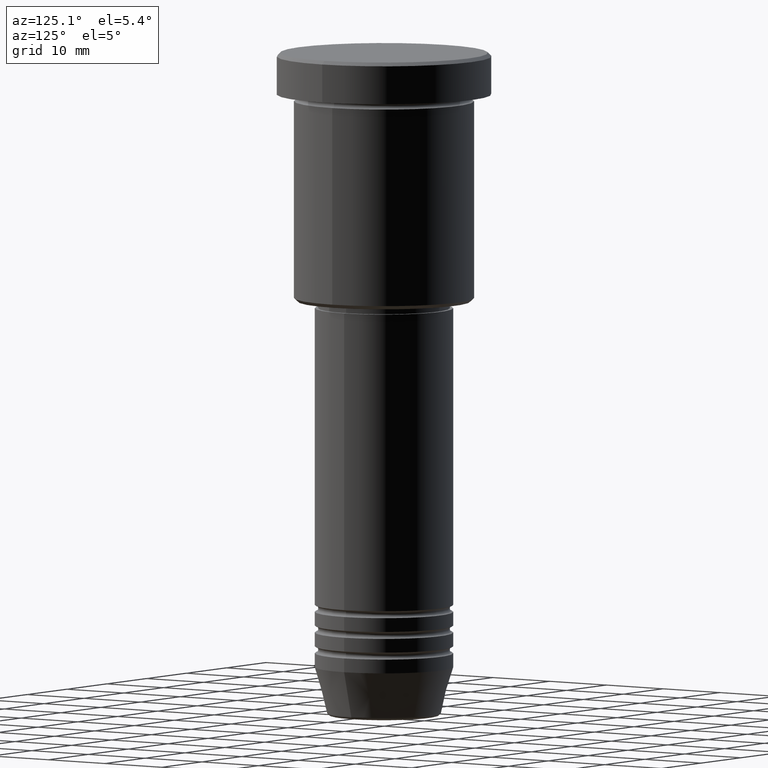
[diagram: clean part render]
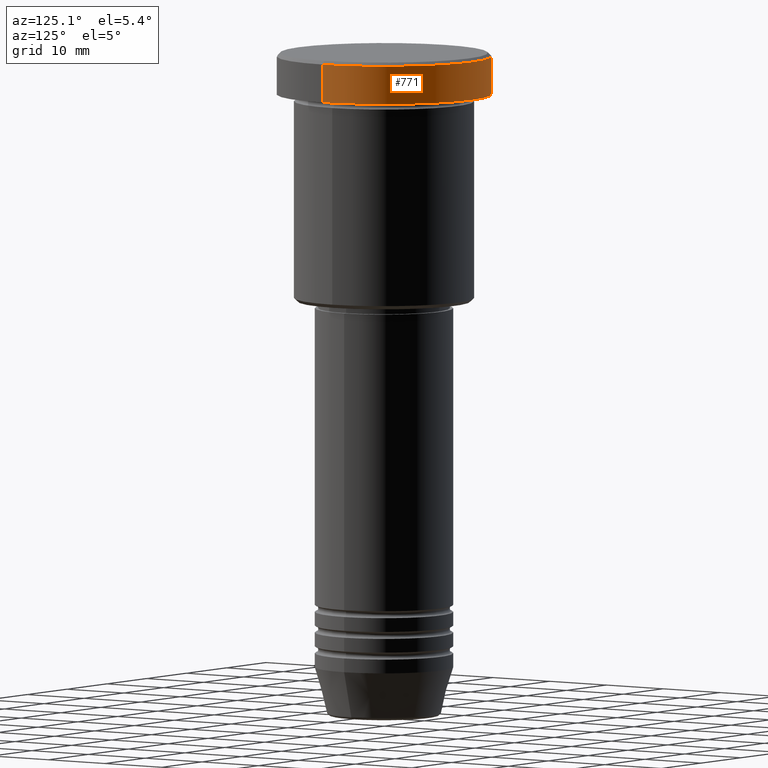
[diagram: same view with one face highlighted and labeled with its STEP entity id]
A machine part, auxiliary view. The second image highlights one B-rep face of the part: STEP entity #771.
In plain terms, the highlighted cylindrical surface (partial cylindrical patch) has radius 15.5 mm, axis along (-0, -0, 1).
Its self-contained STEP definition (entity closure, byte-faithful):
#31 = VERTEX_POINT ( 'NONE', #999 ) ;
#35 = DIRECTION ( 'NONE',  ( 0.000000000000000000, 0.000000000000000000, -1.000000000000000000 ) ) ;
#39 = CIRCLE ( 'NONE', #254, 15.50000000000000000 ) ;
#53 = AXIS2_PLACEMENT_3D ( 'NONE', #1147, #1165, #868 ) ;
#160 = CARTESIAN_POINT ( 'NONE',  ( -15.50000000000000000, 1.898202538678397557E-15, -0.4999999999999987232 ) ) ;
#197 = ORIENTED_EDGE ( 'NONE', *, *, #744, .T. ) ;
#241 = CYLINDRICAL_SURFACE ( 'NONE', #53, 15.50000000000000000 ) ;
#245 = VECTOR ( 'NONE', #730, 1000.000000000000000 ) ;
#254 = AXIS2_PLACEMENT_3D ( 'NONE', #1171, #898, #547 ) ;
#257 = VERTEX_POINT ( 'NONE', #874 ) ;
#262 = EDGE_LOOP ( 'NONE', ( #562, #445, #197, #938 ) ) ;
#273 = CARTESIAN_POINT ( 'NONE',  ( -15.50000000000000000, 1.898202538678397557E-15, 0.000000000000000000 ) ) ;
#277 = EDGE_CURVE ( 'NONE', #31, #257, #627, .T. ) ;
#355 = EDGE_CURVE ( 'NONE', #31, #841, #39, .T. ) ;
#364 = VECTOR ( 'NONE', #887, 1000.000000000000000 ) ;
#398 = DIRECTION ( 'NONE',  ( 1.000000000000000000, 0.000000000000000000, 0.000000000000000000 ) ) ;
#429 = CARTESIAN_POINT ( 'NONE',  ( -15.50000000000000000, 1.898202538678397557E-15, -5.999999999999995559 ) ) ;
#445 = ORIENTED_EDGE ( 'NONE', *, *, #895, .T. ) ;
#468 = VERTEX_POINT ( 'NONE', #160 ) ;
#498 = CARTESIAN_POINT ( 'NONE',  ( 0.000000000000000000, 0.000000000000000000, -0.4999999999999987232 ) ) ;
#547 = DIRECTION ( 'NONE',  ( 1.000000000000000000, 0.000000000000000000, 0.000000000000000000 ) ) ;
#562 = ORIENTED_EDGE ( 'NONE', *, *, #355, .T. ) ;
#627 = LINE ( 'NONE', #977, #364 ) ;
#730 = DIRECTION ( 'NONE',  ( -0.000000000000000000, -0.000000000000000000, 1.000000000000000000 ) ) ;
#744 = EDGE_CURVE ( 'NONE', #468, #257, #872, .T. ) ;
#771 = ADVANCED_FACE ( 'NONE', ( #1074 ), #241, .T. ) ;
#778 = AXIS2_PLACEMENT_3D ( 'NONE', #498, #35, #398 ) ;
#841 = VERTEX_POINT ( 'NONE', #429 ) ;
#868 = DIRECTION ( 'NONE',  ( 1.000000000000000000, 0.000000000000000000, 0.000000000000000000 ) ) ;
#872 = CIRCLE ( 'NONE', #778, 15.50000000000000000 ) ;
#874 = CARTESIAN_POINT ( 'NONE',  ( 15.50000000000000000, 0.000000000000000000, -0.4999999999999987232 ) ) ;
#887 = DIRECTION ( 'NONE',  ( -0.000000000000000000, -0.000000000000000000, 1.000000000000000000 ) ) ;
#893 = LINE ( 'NONE', #273, #245 ) ;
#895 = EDGE_CURVE ( 'NONE', #841, #468, #893, .T. ) ;
#898 = DIRECTION ( 'NONE',  ( -0.000000000000000000, -0.000000000000000000, 1.000000000000000000 ) ) ;
#938 = ORIENTED_EDGE ( 'NONE', *, *, #277, .F. ) ;
#977 = CARTESIAN_POINT ( 'NONE',  ( 15.50000000000000000, 0.000000000000000000, 0.000000000000000000 ) ) ;
#999 = CARTESIAN_POINT ( 'NONE',  ( 15.50000000000000000, 0.000000000000000000, -5.999999999999995559 ) ) ;
#1074 = FACE_OUTER_BOUND ( 'NONE', #262, .T. ) ;
#1147 = CARTESIAN_POINT ( 'NONE',  ( 0.000000000000000000, 0.000000000000000000, 0.000000000000000000 ) ) ;
#1165 = DIRECTION ( 'NONE',  ( -0.000000000000000000, -0.000000000000000000, 1.000000000000000000 ) ) ;
#1171 = CARTESIAN_POINT ( 'NONE',  ( 0.000000000000000000, 0.000000000000000000, -5.999999999999995559 ) ) ;